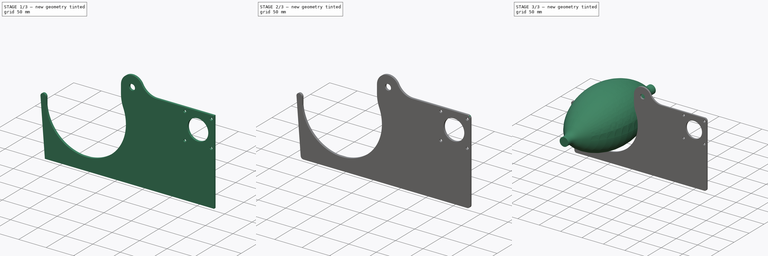
[diagram: build sequence overview — one tinted view per stage of 3, left to right]
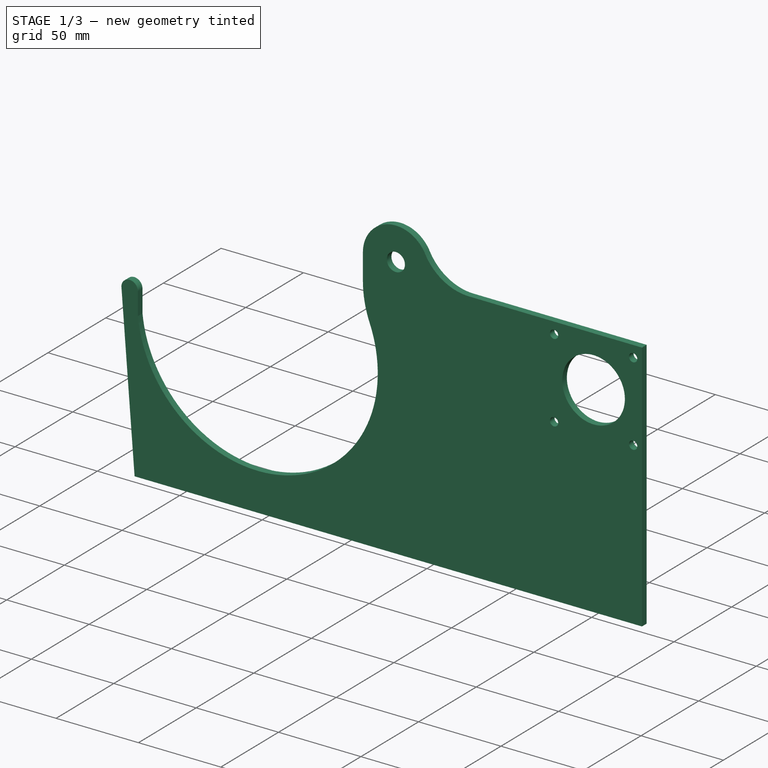
[diagram: stage 1 of 3 — iso view after this stage's code; geometry added in this stage tinted green]
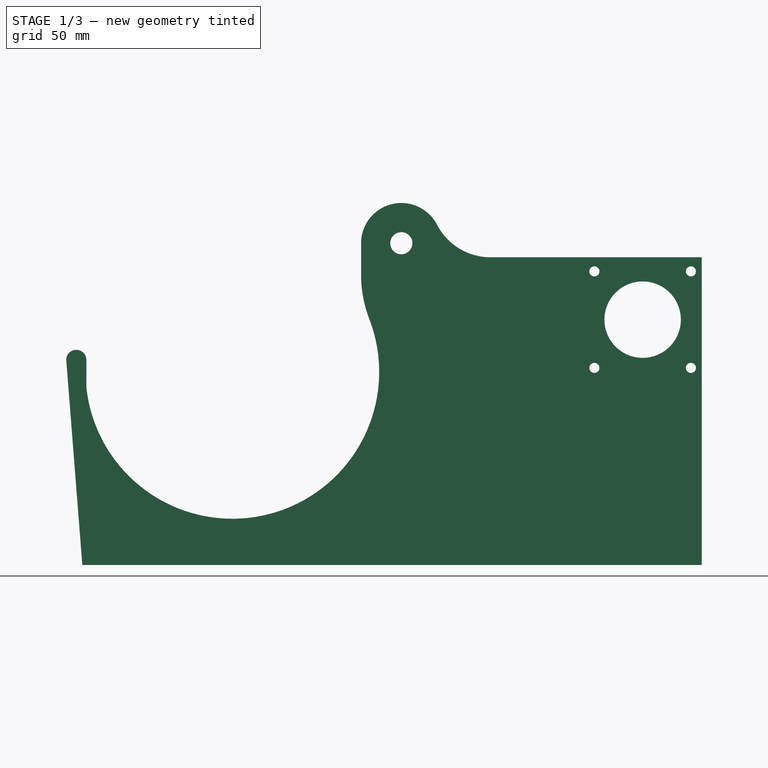
[diagram: stage 1 of 3 — front view after this stage's code; geometry added in this stage tinted green]
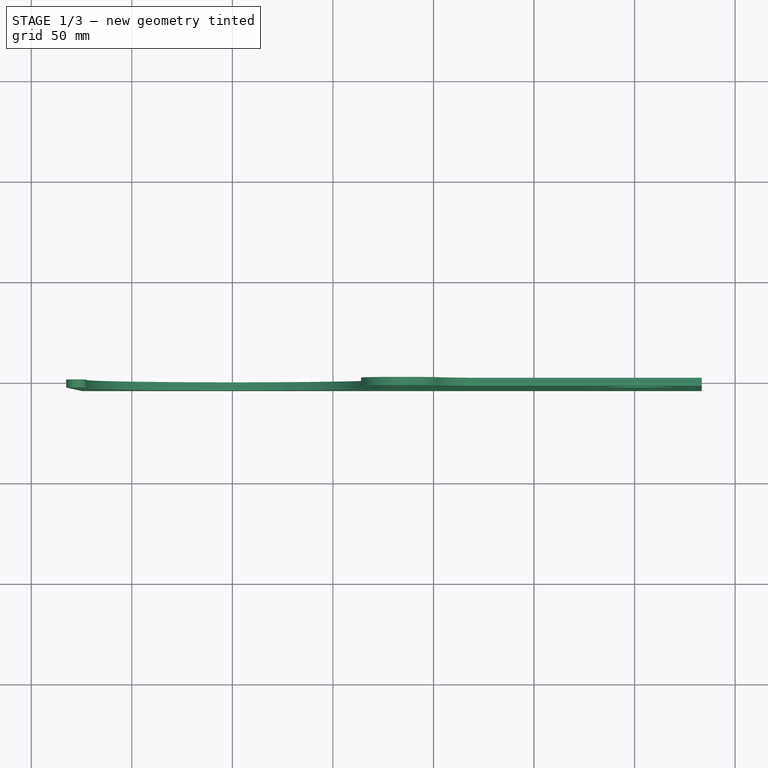
[diagram: stage 1 of 3 — top view after this stage's code; geometry added in this stage tinted green]
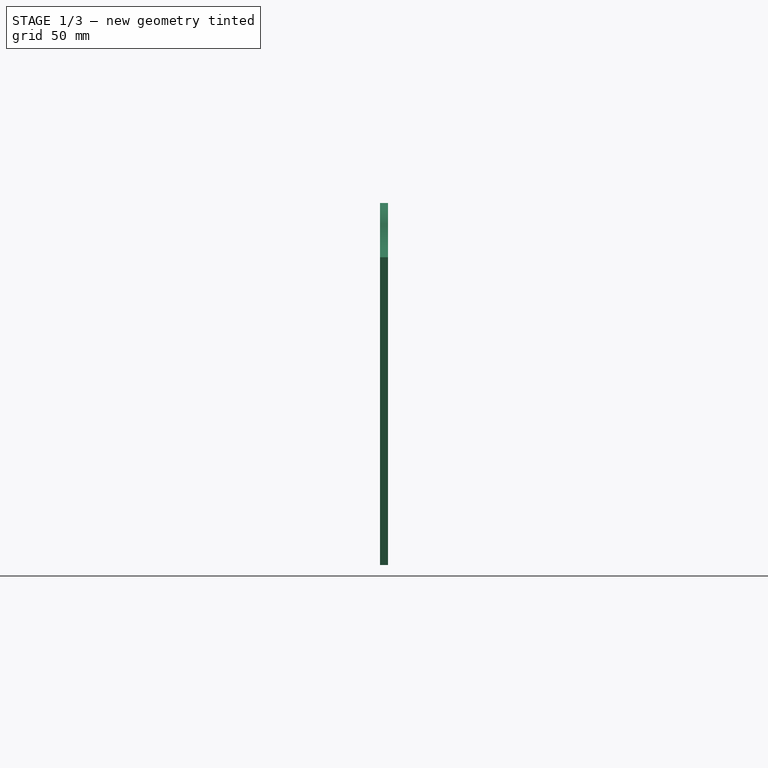
[diagram: stage 1 of 3 — right view after this stage's code; geometry added in this stage tinted green]
FCSTD DOCUMENT  (FreeCAD 0.18.4R)
Label: Respirador ResistenciaTeam
License: All rights reserved
LicenseURL: http://en.wikipedia.org/wiki/All_rights_reserved
objects: Part::Feature×26, App::Part×9, PartDesign::Body×4, Sketcher::SketchObject×3, PartDesign::Fillet×2, PartDesign::FeatureBase×2, PartDesign::Revolution×1, PartDesign::Pad×1, PartDesign::Pocket×1
note: 43 computed .brp shape members not serialized (recipe doc carries the construction recipe); baked Part::Feature solids carry a one-line shape summary decoded from their .brp

FEATURE [PartDesign::Body] Body
  Group = -> [Sketch,Revolution,Fillet]
  Origin = -> Origin009
  Tip = -> Fillet
FEATURE [App::Part] Part002  label="Balloon"
  Group = -> [Body]
  Origin = -> Origin004
FEATURE [Sketcher::SketchObject] Sketch001
  MapMode = 5
  Placement = pos=(0,0,0) rot=(1,0,0;1.5708rad)
  Support = -> [XZ_Plane010]
  sketch-geometry (11):
    g0: LineSegment StartX=-82.6041 StartY=6 StartZ=0 EndX=-74.6041 EndY=-96 EndZ=0
    g1: LineSegment StartX=-74.6041 StartY=-96 StartZ=0 EndX=233.396 EndY=-96 EndZ=0
    g2: LineSegment StartX=233.396 StartY=-96 StartZ=0 EndX=233.396 EndY=57 EndZ=0
    g3: LineSegment StartX=233.396 StartY=57 StartZ=0 EndX=128.396 EndY=57 EndZ=0
    g4: LineSegment StartX=64 StartY=64 StartZ=0 EndX=64 EndY=48.0937 EndZ=0
    g5: ArcOfCircle CenterX=0 CenterY=0 CenterZ=0 NormalX=0 NormalY=0 NormalZ=1 AngleXU=0 Radius=73 StartAngle=3.24579 EndAngle=6.65318
    g6: ArcOfCircle CenterX=-77.6041 CenterY=6 CenterZ=0 NormalX=0 NormalY=0 NormalZ=1 AngleXU=0 Radius=5 StartAngle=2e-16 EndAngle=3.14159
    g7: LineSegment StartX=-72.6041 StartY=6 StartZ=0 EndX=-72.6041 EndY=-7.59285 EndZ=0
    g8: ArcOfCircle CenterX=124 CenterY=48.0937 CenterZ=0 NormalX=0 NormalY=0 NormalZ=1 AngleXU=0 Radius=60 StartAngle=3.14159 EndAngle=3.51158
    g9: ArcOfCircle CenterX=84 CenterY=64 CenterZ=0 NormalX=0 NormalY=0 NormalZ=1 AngleXU=0 Radius=20 StartAngle=0.477995 EndAngle=3.14159
    g10: ArcOfCircle CenterX=128.396 CenterY=87 CenterZ=0 NormalX=0 NormalY=0 NormalZ=1 AngleXU=0 Radius=30 StartAngle=3.61959 EndAngle=4.71239
  constraints (31):
    c: Coincident(g0,g1)
    c: Horizontal(g1)
    c: Coincident(g1,g2)
    c: Vertical(g2)
    c: Coincident(g2,g3)
    c: Horizontal(g3)
    c: Coincident(g5,g-1)
    c: Tangent(g6,g7) = 1.5708
    c: Coincident(g7,g5)
    c: Vertical(g7)
    c: Radius(g5) = 73
    c: Radius(g6) = 5
    c: DistanceY(g0,g5) = 96
    c: DistanceX(g6,g0) = 8
    c: DistanceX(g1,g1) = 308
    c: Tangent(g8,g5) = 1.5708
    c: Tangent(g8,g4) = -1.5708
    c: Vertical(g4)
    c: Radius(g9) = 20
    c: Tangent(g10,g3) = 1.5708
    c: Tangent(g9,g4) = -1.5708
    c: DistanceY(g5,g9) = 64
    c: DistanceX(g5,g4) = 64
    c: Radius(g8) = 60
    c: DistanceY(g2,g2) = 153
    c: DistanceX(g3,g3) = 105
    c: Radius(g10) = 30
    c: Horizontal(g6,g6)
    c: Coincident(g0,g6)
    c: DistanceY(g5,g6) = 6
    c: Tangent(g10,g9) = 1.5708
FEATURE [PartDesign::Pad] Pad
  Length = 4
  Length2 = 100
  Placement = pos=(0,0,0) rot=(1,0,0;1.5708rad)
  Profile = -> Sketch001
  Refine = true
  Type = 0
FEATURE [Sketcher::SketchObject] Sketch002
  MapMode = 5
  Placement = pos=(0,-4,2.7e-15) rot=(1,0,0;1.5708rad)
  sketch-geometry (6):
    g0: Circle CenterX=204 CenterY=26 CenterZ=0 NormalX=0 NormalY=0 NormalZ=1 AngleXU=0 Radius=19
    g1: Circle CenterX=180 CenterY=50 CenterZ=0 NormalX=0 NormalY=0 NormalZ=1 AngleXU=0 Radius=2.5
    g2: Circle CenterX=228 CenterY=50 CenterZ=0 NormalX=0 NormalY=0 NormalZ=1 AngleXU=0 Radius=2.5
    g3: Circle CenterX=228 CenterY=2 CenterZ=0 NormalX=0 NormalY=0 NormalZ=1 AngleXU=0 Radius=2.5
    g4: Circle CenterX=180 CenterY=2 CenterZ=0 NormalX=0 NormalY=0 NormalZ=1 AngleXU=0 Radius=2.5
    g5: Circle CenterX=84 CenterY=64 CenterZ=0 NormalX=0 NormalY=0 NormalZ=1 AngleXU=0 Radius=5.5
  constraints (16):
    c: DistanceX(g-1,g0) = 204
    c: Radius(g0) = 19
    c: DistanceY(g0,g1) = 24
    c: DistanceX(g1,g0) = 24
    c: Symmetric(g4,g2,g0)
    c: DistanceY(g-1,g0) = 26
    c: Symmetric(g3,g1,g0)
    c: Radius(g3) = 2.5
    c: Vertical(g2,g3)
    c: Horizontal(g2,g1)
    c: Equal(g4,g3)
    c: Equal(g3,g2)
    c: Equal(g2,g1)
    c: DistanceY(g-1,g5) = 64
    c: DistanceX(g-1,g5) = 84
    c: Radius(g5) = 5.5
FEATURE [PartDesign::Pocket] Pocket
  BaseFeature = -> Pad
  Length = 5
  Length2 = 100
  Placement = pos=(0,0,0) rot=(1,0,0;1.5708rad)
  Profile = -> Sketch002
  Refine = true
  Type = 1
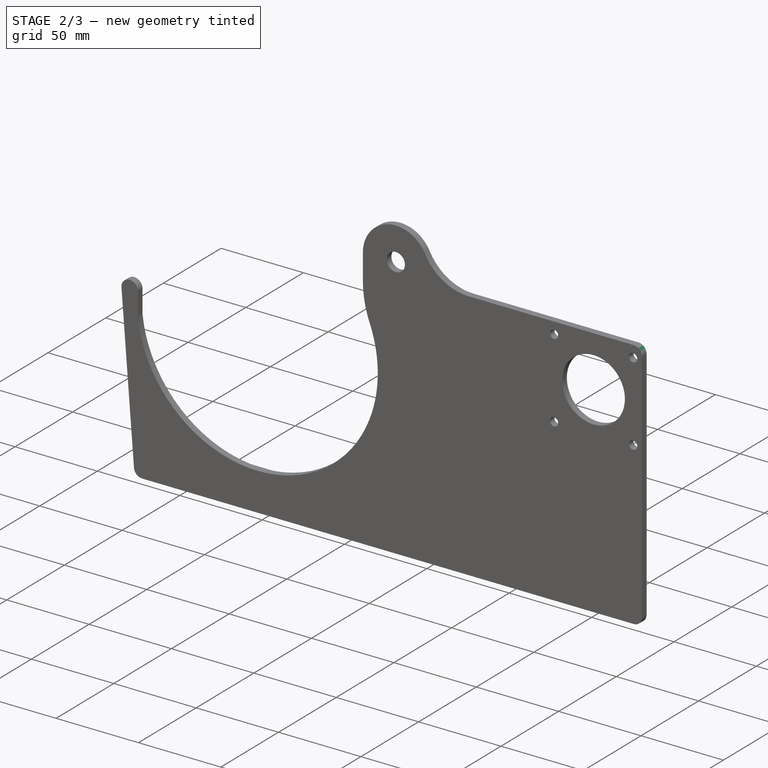
[diagram: stage 2 of 3 — iso view after this stage's code; geometry added in this stage tinted green]
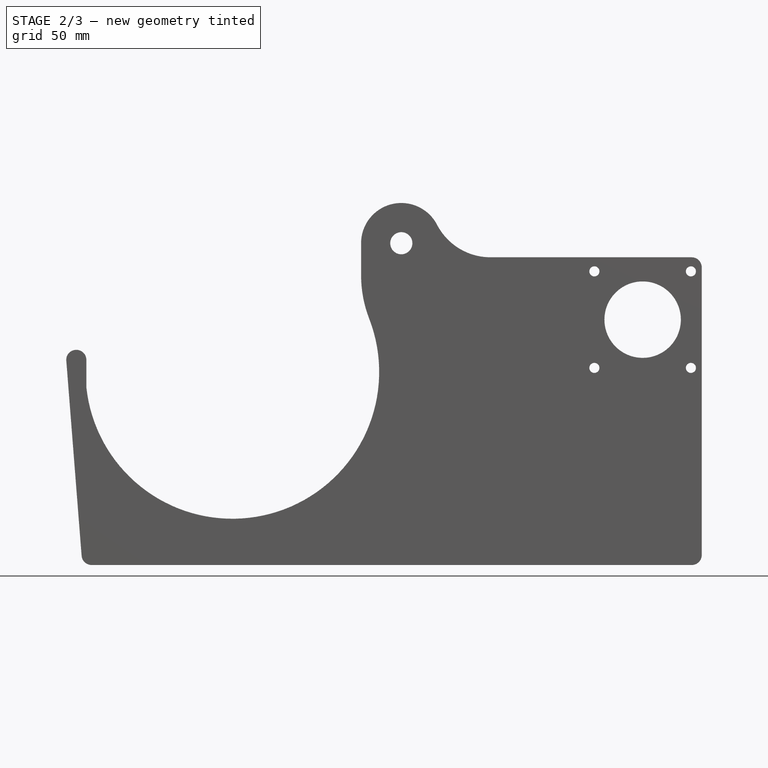
[diagram: stage 2 of 3 — front view after this stage's code; geometry added in this stage tinted green]
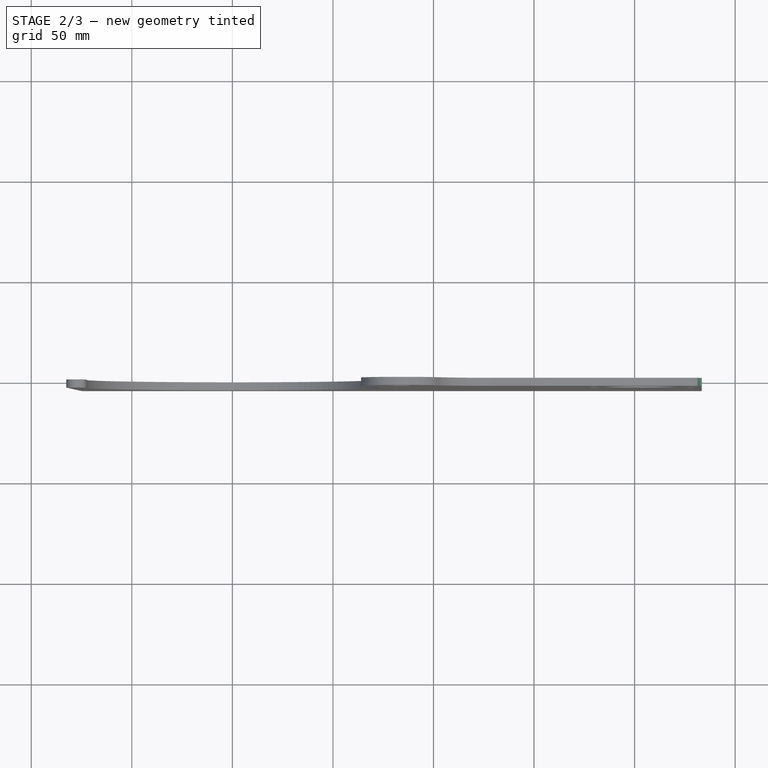
[diagram: stage 2 of 3 — top view after this stage's code; geometry added in this stage tinted green]
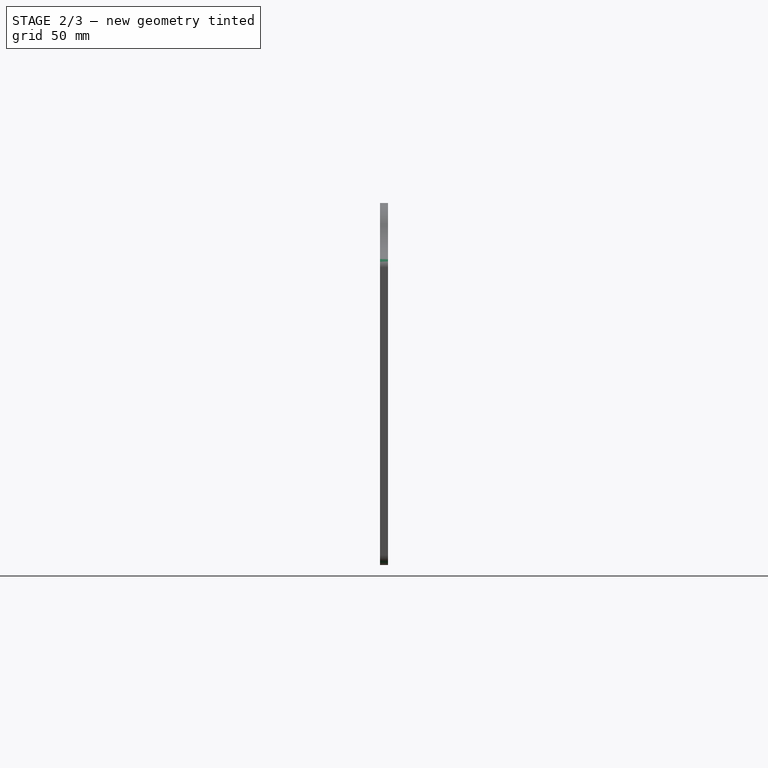
[diagram: stage 2 of 3 — right view after this stage's code; geometry added in this stage tinted green]
FEATURE [PartDesign::Fillet] Fillet001
  Base = -> Pocket [Edge42,Edge40,Edge8]
  BaseFeature = -> Pocket
  Placement = pos=(0,0,0) rot=(1,0,0;1.5708rad)
  Radius = 5
FEATURE [PartDesign::Body] Body001  label="Soporte Principal001"
  Group = -> [Sketch001,Pad,Sketch002,Pocket,Fillet001]
  Origin = -> Origin010
  Tip = -> Fillet001
FEATURE [PartDesign::FeatureBase] Clone
  BaseFeature = -> Body001
FEATURE [PartDesign::Body] Body002  label="Soporte principal clon001"
  Group = -> [Clone]
  Origin = -> Origin011
  Placement = pos=(0,-9,0) rot=(0,0,1;0rad)
  Tip = -> Clone
FEATURE [PartDesign::FeatureBase] Clone002
  BaseFeature = -> Body001
FEATURE [PartDesign::Body] Body004  label="Soporte principal clon002"
  Group = -> [Clone002]
  Origin = -> Origin013
  Placement = pos=(0,9,0) rot=(0,0,1;0rad)
  Tip = -> Clone002
FEATURE [App::Part] Part003  label="Soporte Principal"
  Group = -> [Body001,Body002,Body004]
  Origin = -> Origin005
FEATURE [App::Part] Part  label="Respirator"
  Group = -> [Part001,Part002,Part003,Part004,Part005,Part006]
  Origin = -> Origin
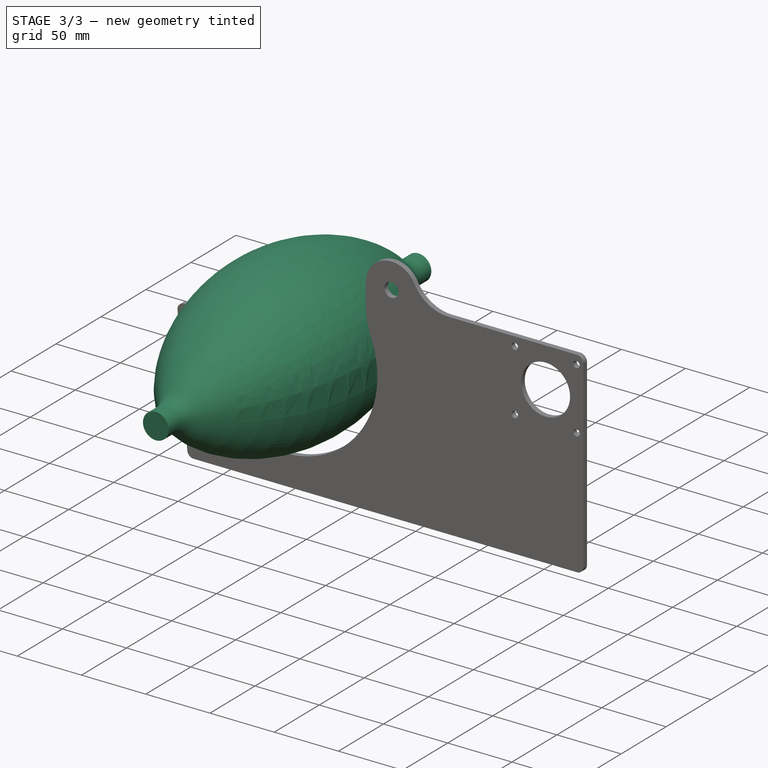
[diagram: stage 3 of 3 — iso view after this stage's code; geometry added in this stage tinted green]
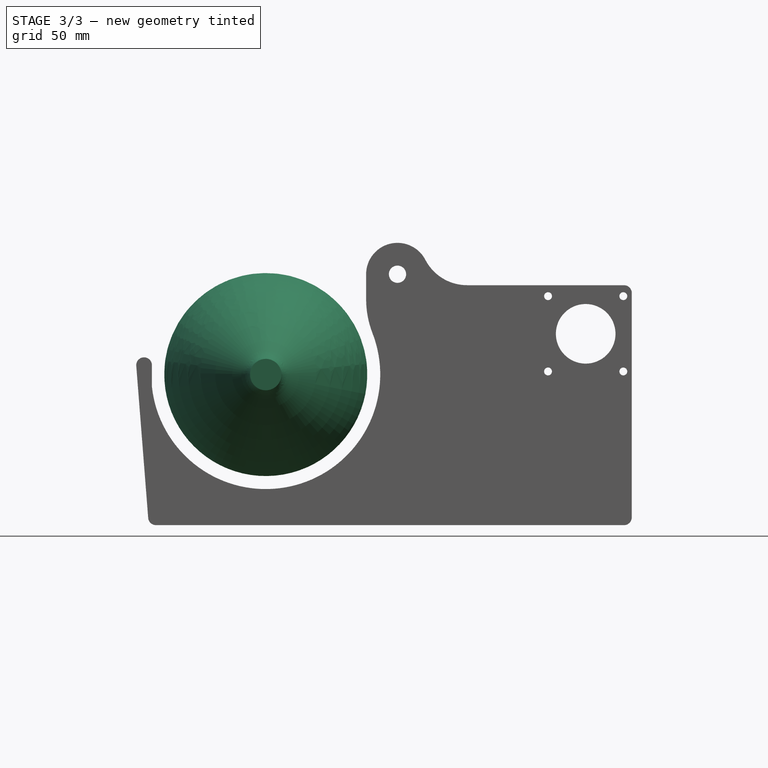
[diagram: stage 3 of 3 — front view after this stage's code; geometry added in this stage tinted green]
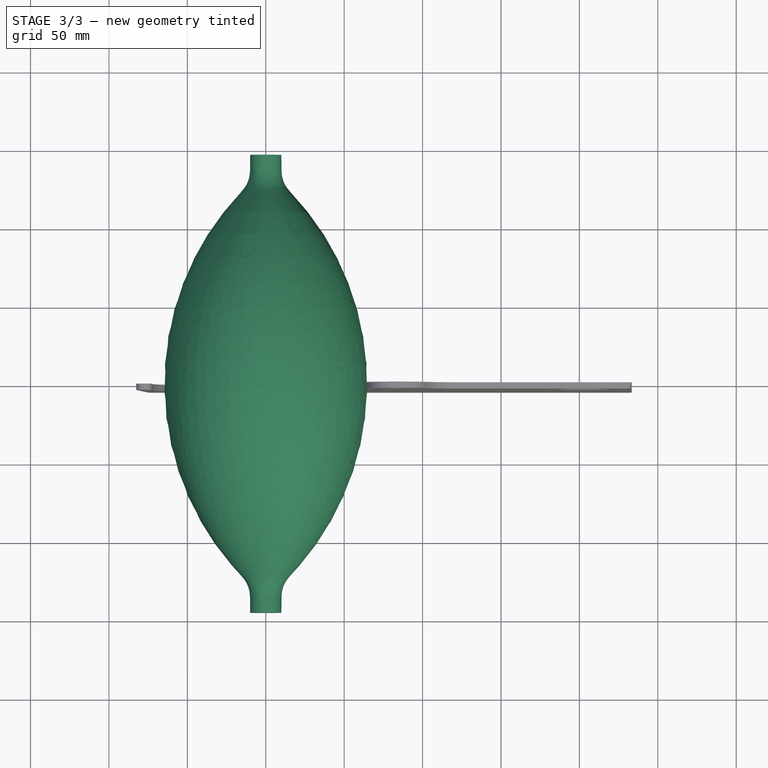
[diagram: stage 3 of 3 — top view after this stage's code; geometry added in this stage tinted green]
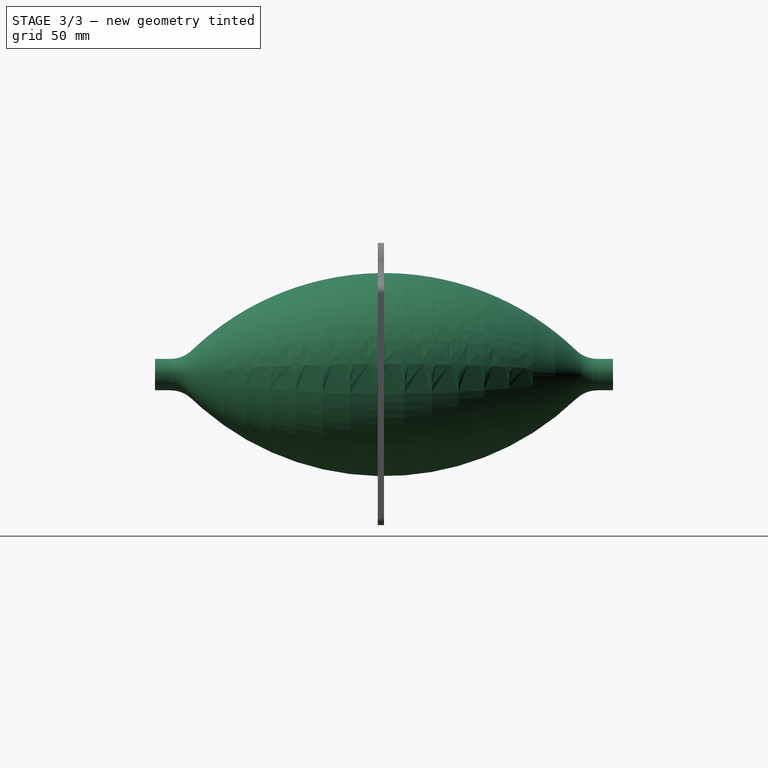
[diagram: stage 3 of 3 — right view after this stage's code; geometry added in this stage tinted green]
FEATURE [Part::Feature] Part__Feature  label="bearing_625zz_0"
  Placement = pos=(3.9e-14,34.9831,37.0263) rot=(0,0,1;0rad)
  shape: bbox 5 x 17.32 x 17.32 mm, 20 faces (baked)
FEATURE [Part::Feature] Part__Feature001  label="palanca-CNC-LASER"
  Placement = pos=(-2.5,-68.0559,99.3398) rot=(-0.294716,0.294716,0.909002;1.66606rad)
  shape: bbox 3 x 224.6 x 170.7 mm, 18 faces (baked)
FEATURE [Part::Feature] Part__Feature002  label="palanca-CNC-LASER001"
  Placement = pos=(7.5,-68.0559,99.3398) rot=(-0.294716,0.294716,0.909002;1.66606rad)
  shape: bbox 3 x 224.6 x 170.7 mm, 18 faces (baked)
FEATURE [Part::Feature] Part__Feature003  label="AR M5"
  Placement = pos=(5.5,34.9831,37.0263) rot=(-0.439954,0.439954,0.782867;1.81318rad)
  shape: bbox 1 x 10 x 10 mm, 4 faces (baked)
FEATURE [Part::Feature] Part__Feature004  label="AR M006"
  Placement = pos=(-0.5,34.9831,37.0263) rot=(-0.224286,0.224286,0.948363;1.62379rad)
  shape: bbox 1 x 10 x 10 mm, 4 faces (baked)
FEATURE [Part::Feature] Part__Feature005  label="empujador"
  Placement = pos=(2.5,-135.221,157.27) rot=(-0.294716,0.294716,0.909002;1.66606rad)
  shape: bbox 120 x 88.26 x 71.91 mm, 15 faces (baked)
FEATURE [Part::Feature] Part__Feature006  label="item_8_0_004_12_biq41gv2ypkypls4gfckj5y0b"
  Placement = pos=(9,34.9831,37.0263) rot=(-0.484485,0.484485,0.728387;1.88254rad)
  shape: bbox 25 x 8.515 x 8.515 mm, 15 faces (baked)
FEATURE [Part::Feature] Part__Feature007  label="item_8_0_004_12_biq41gv2ypkypls4gfckj5y0b001"
  Placement = pos=(10,-100.177,136.816) rot=(-0.395557,0.395557,0.828896;1.75737rad)
  shape: bbox 25 x 9.15 x 9.15 mm, 15 faces (baked)
FEATURE [Part::Feature] Part__Feature008  label="item_8_0_004_12_biq41gv2ypkypls4gfckj5y0b002"
  Placement = pos=(10,-160.909,180.823) rot=(-0.38528,0.38528,0.838521;1.74601rad)
  shape: bbox 25 x 9.174 x 9.174 mm, 15 faces (baked)
FEATURE [Part::Feature] Part__Feature009  label="AR M007"
  Placement = pos=(9.5,34.9831,37.0263) rot=(-0.407638,0.407638,0.817107;1.77142rad)
  shape: bbox 1 x 10 x 10 mm, 4 faces (baked)
FEATURE [Part::Feature] Part__Feature010  label="AR M008"
  Placement = pos=(-4.5,34.9831,37.0263) rot=(-0.439954,0.439954,0.782867;1.81318rad)
  shape: bbox 1 x 10 x 10 mm, 4 faces (baked)
FEATURE [Part::Feature] Part__Feature011  label="AR M009"
  Placement = pos=(-4.5,-100.177,136.816) rot=(-0.439954,0.439954,0.782867;1.81318rad)
  shape: bbox 1 x 10 x 10 mm, 4 faces (baked)
FEATURE [Part::Feature] Part__Feature012  label="AR M010"
  Placement = pos=(-4.5,-160.909,180.823) rot=(-0.439954,0.439954,0.782867;1.81318rad)
  shape: bbox 1 x 10 x 10 mm, 4 faces (baked)
FEATURE [Part::Feature] Part__Feature013  label="tuerca_din934_m5-10"
  Placement = pos=(-9,-160.909,180.823) rot=(0.684197,0.252488,0.684197;2.64696rad)
  shape: bbox 4.047 x 9.238 x 9.238 mm, 13 faces (baked)
FEATURE [Part::Feature] Part__Feature014  label="separador-eje-principal"
  Placement = pos=(-1,-68.0559,99.3398) rot=(-0.473707,0.473707,0.74243;1.86431rad)
  shape: bbox 7 x 20 x 20 mm, 4 faces (baked)
FEATURE [Part::Feature] Part__Feature015  label="tuerca_din934_m5-011"
  Placement = pos=(1.8e-14,-100.177,136.816) rot=(-0.648314,-0.399223,0.648314;2.38192rad)
  shape: bbox 4.047 x 9.238 x 9.238 mm, 13 faces (baked)
FEATURE [Part::Feature] Part__Feature016  label="tuerca_din934_m5-012"
  Placement = pos=(-9,-100.177,136.816) rot=(0.684197,0.252488,0.684197;2.64696rad)
  shape: bbox 4.047 x 9.238 x 9.238 mm, 13 faces (baked)
FEATURE [Part::Feature] Part__Feature017  label="tuerca_din934_m5-013"
  Placement = pos=(3.04e-14,34.9831,37.0263) rot=(-0.648314,-0.399223,0.648314;2.38192rad)
  shape: bbox 4.047 x 9.238 x 9.238 mm, 13 faces (baked)
FEATURE [Part::Feature] Part__Feature018  label="tuerca_din934_m5-014"
  Placement = pos=(-9,34.9831,37.0263) rot=(0.684197,0.252488,0.684197;2.64696rad)
  shape: bbox 4.047 x 9.238 x 9.238 mm, 13 faces (baked)
FEATURE [App::Part] conjunto
  Group = -> [Part__Feature,Part__Feature001,Part__Feature002,Part__Feature003,Part__Feature004,Part__Feature005,Part__Feature006,Part__Feature007,Part__Feature008,Part__Feature009,Part__Feature010,Part__Feature011,Part__Feature012,Part__Feature013,Part__Feature014,Part__Feature015,Part__Feature016,Part__Feature017,Part__Feature018]
  Origin = -> Origin001
  Placement = pos=(198.182,25.7586,-9.9e-15) rot=(-0.407064,-0.817679,-0.407064;1.77074rad)
FEATURE [Part::Feature] Part__Feature019  label="balloon"
  Placement = pos=(-2.79e-14,1.49e-14,145.866) rot=(-0.287331,0.677289,-0.677289;2.58201rad)
  shape: bbox 181.2 x 181.2 x 291.7 mm, 8 faces (baked)
FEATURE [Part::Feature] Part__Feature020  label="NEMA23 57BYGH627"
  Placement = pos=(203.817,25.8893,-7) rot=(0,0,1;0rad)
  shape: bbox 57.59 x 64.5 x 97.01 mm, 394 faces (baked)
FEATURE [Part::Feature] Part__Feature021  label="Pieza15"
  Placement = pos=(-1.14481,-1.39906,-7) rot=(1,0,0;1.5708rad)
  shape: bbox 315.4 x 180.4 x 3 mm, 20 faces (baked)
FEATURE [Part::Feature] Part__Feature022  label="Pieza016"
  Placement = pos=(-1.14481,-1.39906,9) rot=(1,0,0;1.5708rad)
  shape: bbox 315.4 x 180.4 x 3 mm, 20 faces (baked)
FEATURE [Part::Feature] Part__Feature023  label="leva"
  Placement = pos=(203.817,25.8893,3e-14) rot=(0.09259,0.704069,-0.704069;3.32625rad)
  shape: bbox 88.34 x 138.1 x 5 mm, 11 faces (baked)
FEATURE [Part::Feature] Part__Feature024  label="soporte-globo"
  Placement = pos=(6.94e-14,-9.74e-14,2.5) rot=(-1,0,0;1.5708rad)
  shape: bbox 232.4 x 73.06 x 240 mm, 57 faces (baked)
FEATURE [Part::Feature] Part__Feature025  label="acople leva v3"
  Placement = pos=(0,0,5) rot=(0,0,1;0rad)
  shape: bbox 30 x 30 x 10 mm, 10 faces (baked)
FEATURE [App::Part] Reespirator23_v6  label="Reespirator23 v6"
  Group = -> [conjunto,Part__Feature019,Part__Feature020,Part__Feature021,Part__Feature022,Part__Feature023,Part__Feature024,Part__Feature025]
  Origin = -> Origin002
  Placement = pos=(0,0,0) rot=(1,0,0;1.5708rad)
FEATURE [App::Part] Part001  label="Protector"
  Origin = -> Origin003
FEATURE [App::Part] Part004  label="Soporte Globo"
  Origin = -> Origin006
FEATURE [App::Part] Part005  label="Acomple leva"
  Origin = -> Origin007
FEATURE [App::Part] Part006  label="Actuador"
  Origin = -> Origin008
FEATURE [Sketcher::SketchObject] Sketch
  MapMode = 5
  Placement = pos=(0,0,0) rot=(0.57735,0.57735,0.57735;2.0944rad)
  Support = -> [YZ_Plane009]
  sketch-geometry (6):
    g0: LineSegment StartX=-146 StartY=10 StartZ=0 EndX=-128 EndY=10 EndZ=0
    g1: LineSegment StartX=-146 StartY=10 StartZ=0 EndX=-146 EndY=0 EndZ=0
    g2: LineSegment StartX=-146 StartY=0 StartZ=0 EndX=146 EndY=0 EndZ=0
    g3: LineSegment StartX=146 StartY=0 StartZ=0 EndX=146 EndY=10 EndZ=0
    g4: LineSegment StartX=146 StartY=10 StartZ=0 EndX=128 EndY=10 EndZ=0
    g5: ArcOfCircle CenterX=0 CenterY=-112.25 CenterZ=0 NormalX=0 NormalY=0 NormalZ=1 AngleXU=0 Radius=177 StartAngle=0.762424 EndAngle=2.37917
  constraints (18):
    c: Horizontal(g0)
    c: Coincident(g0,g1)
    c: PointOnObject(g1,g-1)
    c: Coincident(g1,g2)
    c: Coincident(g2,g3)
    c: Coincident(g3,g4)
    c: Horizontal(g4)
    c: PointOnObject(g5,g-2)
    c: Coincident(g5,g0)
    c: Coincident(g5,g4)
    c: Vertical(g3)
    c: Symmetric(g2,g1,g-1)
    c: Vertical(g1)
    c: DistanceX(g2,g2) = 292
    c: DistanceY(g1,g1) = 10
    c: Equal(g3,g1)
    c: DistanceX(g4,g4) = 18
    c: Radius(g5) = 177
FEATURE [PartDesign::Revolution] Revolution
  Angle = 360
  Axis = (3e-16,1,-2e-16)
  Base = (0,0,0)
  Placement = pos=(0,0,0) rot=(0.57735,0.57735,0.57735;2.0944rad)
  Profile = -> Sketch
  ReferenceAxis = -> Sketch [H_Axis]
  Refine = true
FEATURE [PartDesign::Fillet] Fillet
  Base = -> Revolution [Edge2,Edge4]
  BaseFeature = -> Revolution
  Placement = pos=(0,0,0) rot=(0.57735,0.57735,0.57735;2.0944rad)
  Radius = 20
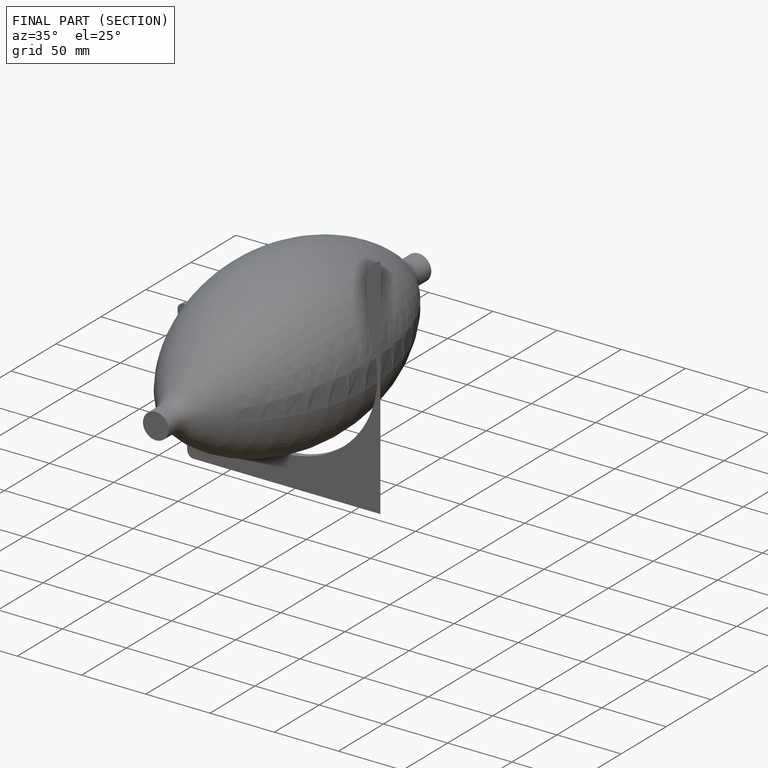
[diagram: finished part — half-section view (interior)]
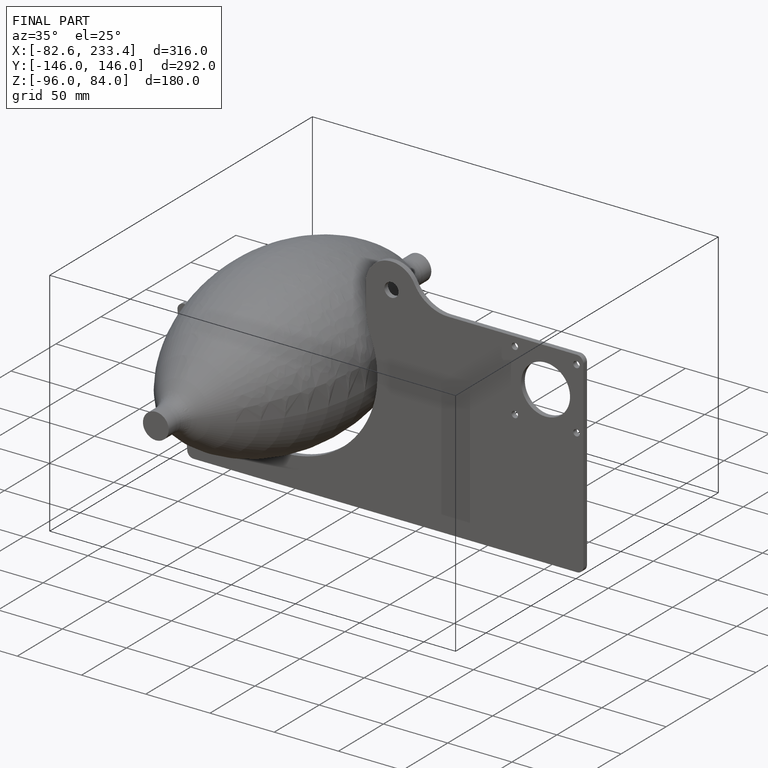
[diagram: finished part — iso view with bounding-box wireframe]
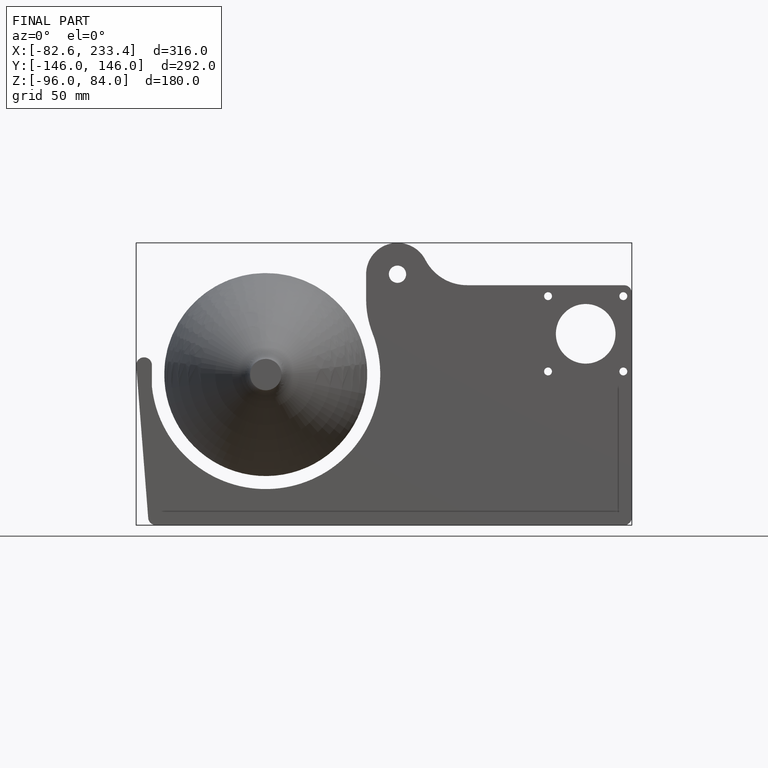
[diagram: finished part — front view with bounding-box wireframe]
